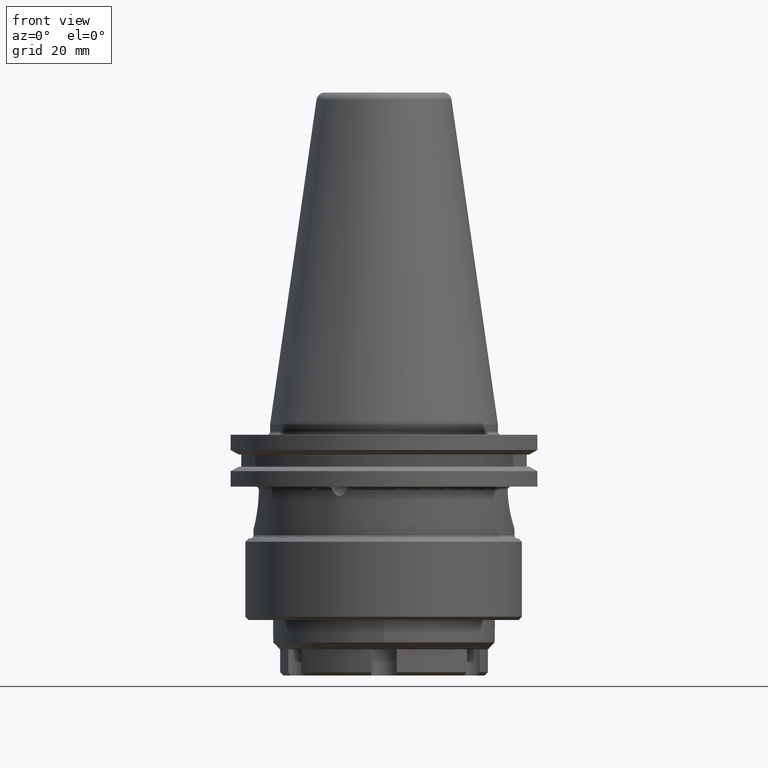
[diagram: clean part render]
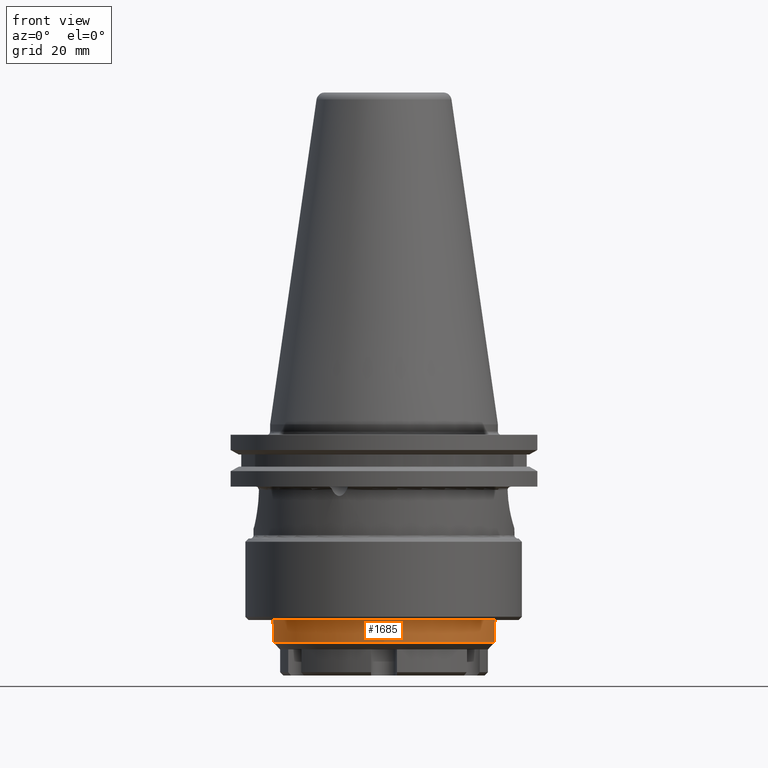
[diagram: same view with one face highlighted and labeled with its STEP entity id]
A machine part, front view. The second image highlights one B-rep face of the part: STEP entity #1685.
In plain terms, the highlighted cylindrical surface (bore or boss wall) has radius 34 mm, axis along (0, -0, -1).
Its self-contained STEP definition (entity closure, byte-faithful):
#316=CYLINDRICAL_SURFACE('',#1842,34.);
#530=ORIENTED_EDGE('',*,*,#931,.F.);
#531=ORIENTED_EDGE('',*,*,#932,.T.);
#931=EDGE_CURVE('',#1144,#1144,#1287,.T.);
#932=EDGE_CURVE('',#1145,#1145,#1288,.F.);
#1144=VERTEX_POINT('',#2746);
#1145=VERTEX_POINT('',#2749);
#1287=CIRCLE('',#1841,34.);
#1288=CIRCLE('',#1843,34.);
#1384=EDGE_LOOP('',(#530));
#1385=EDGE_LOOP('',(#531));
#1512=FACE_BOUND('',#1384,.T.);
#1513=FACE_BOUND('',#1385,.T.);
#1685=ADVANCED_FACE('',(#1512,#1513),#316,.T.);
#1841=AXIS2_PLACEMENT_3D('',#2745,#2156,#2157);
#1842=AXIS2_PLACEMENT_3D('',#2747,#2158,#2159);
#1843=AXIS2_PLACEMENT_3D('',#2748,#2160,#2161);
#2156=DIRECTION('',(3.8956409567083E-16,-2.0454935877782E-16,-1.));
#2157=DIRECTION('',(0.,-1.,5.24047169354182E-16));
#2158=DIRECTION('',(3.8956409567083E-16,-2.0454935877782E-16,-1.));
#2159=DIRECTION('',(0.,-1.,5.24047169354182E-16));
#2160=DIRECTION('',(0.,-2.22044604925031E-16,1.));
#2161=DIRECTION('',(0.,-1.,-2.22044604925031E-16));
#2745=CARTESIAN_POINT('',(1.08493600644326E-14,-5.06407001839681E-16,-66.85));
#2746=CARTESIAN_POINT('',(1.08493600644326E-14,-34.,-66.85));
#2747=CARTESIAN_POINT('',(1.48034356354915E-14,-2.58258299343455E-15,-77.));
#2748=CARTESIAN_POINT('',(8.18084600908743E-15,8.94756105788385E-16,-60.));
#2749=CARTESIAN_POINT('',(8.18084600908743E-15,-34.,-60.));